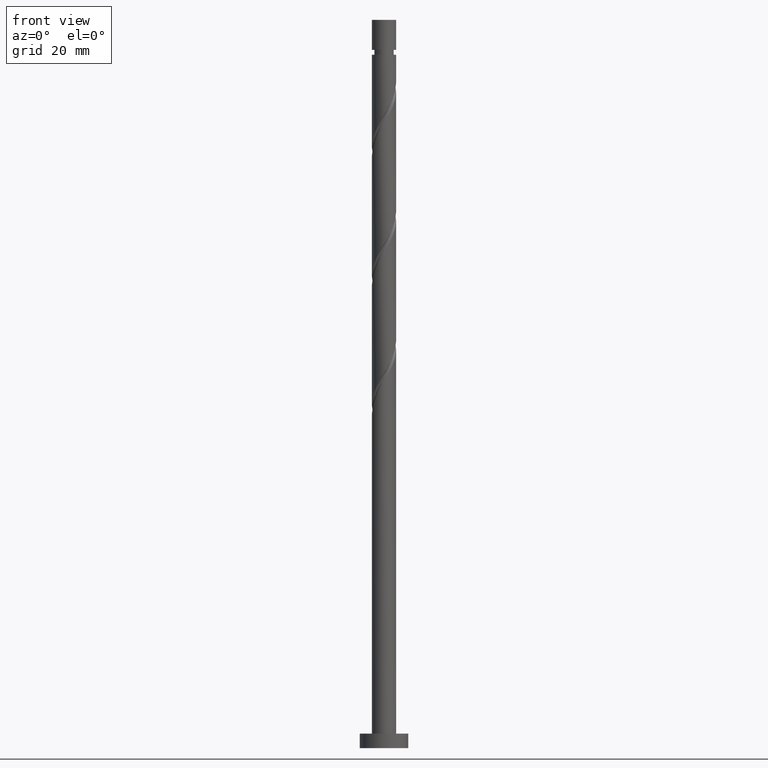
[diagram: clean part render]
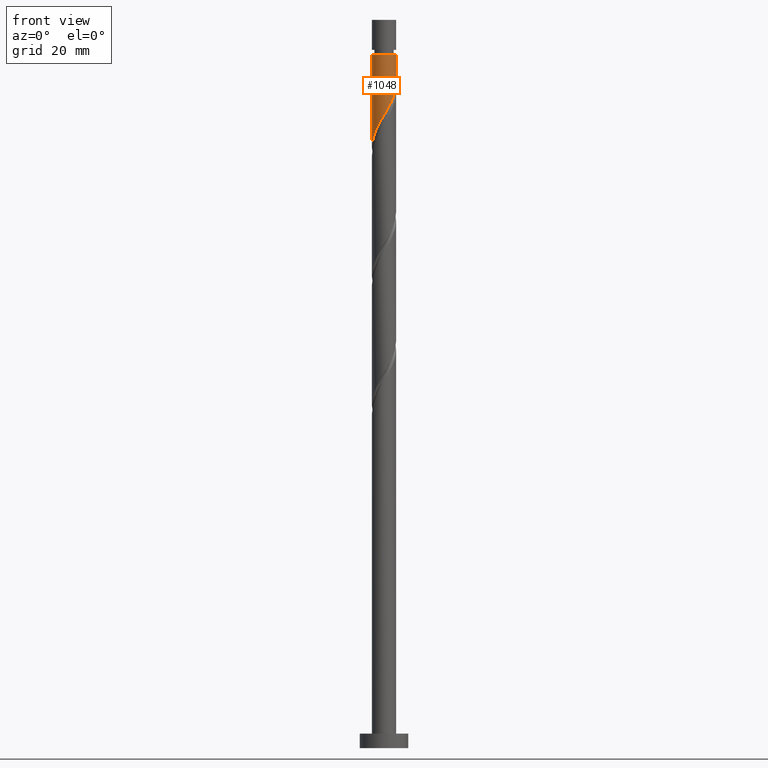
[diagram: same view with one face highlighted and labeled with its STEP entity id]
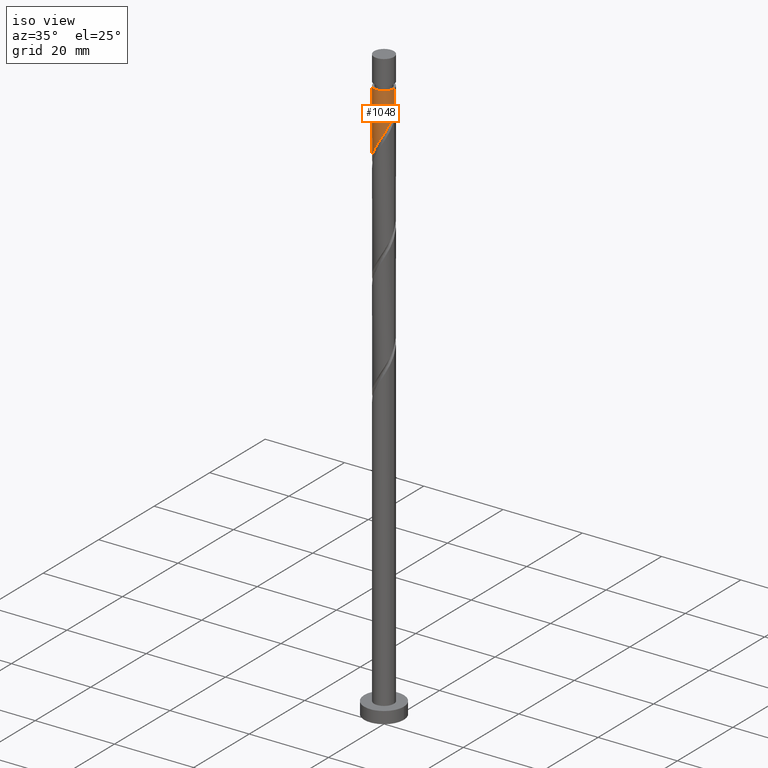
[diagram: same view with one face highlighted and labeled with its STEP entity id]
A machine part, front view. The second image highlights one B-rep face of the part: STEP entity #1048.
A second angle (iso view) of the same face is appended — the face is thin or edge-on in the first view.
In plain terms, the highlighted cylindrical surface (edge-blend (fillet) strip) has radius 2.5 mm, axis along (-0, -0, -1).
Its self-contained STEP definition (entity closure, byte-faithful):
#82 = CARTESIAN_POINT ( 'NONE',  ( 2.500000000000000444, -0.07193881630955681339, 137.3526907218116548 ) ) ;
#94 = DIRECTION ( 'NONE',  ( -0.000000000000000000, -0.000000000000000000, -1.000000000000000000 ) ) ;
#106 = CARTESIAN_POINT ( 'NONE',  ( -2.500000000000000444, -0.2863223184628033713, 124.6274153461678651 ) ) ;
#112 = VERTEX_POINT ( 'NONE', #677 ) ;
#157 = DIRECTION ( 'NONE',  ( -0.000000000000000000, -0.000000000000000000, -1.000000000000000000 ) ) ;
#270 = CARTESIAN_POINT ( 'NONE',  ( -0.8497505388409957172, -2.378471201873189500, 129.3526069745016684 ) ) ;
#279 = CARTESIAN_POINT ( 'NONE',  ( -2.000754257700505967, -1.541487475360714621, 126.9283645502592748 ) ) ;
#312 = DIRECTION ( 'NONE',  ( -1.000000000000000000, 0.000000000000000000, 0.000000000000000000 ) ) ;
#333 = CARTESIAN_POINT ( 'NONE',  ( 2.354261794510395411, -0.8411013035946941496, 136.0192736411683825 ) ) ;
#374 = CARTESIAN_POINT ( 'NONE',  ( 2.500000000000000000, 3.061616997868383141E-16, 150.5000000000000000 ) ) ;
#385 = EDGE_CURVE ( 'NONE', #622, #656, #1388, .T. ) ;
#395 = ORIENTED_EDGE ( 'NONE', *, *, #1060, .T. ) ;
#396 = CARTESIAN_POINT ( 'NONE',  ( -1.167586491630752565, -2.210597608014943649, 128.7465463684411020 ) ) ;
#457 = CARTESIAN_POINT ( 'NONE',  ( 0.000000000000000000, 0.000000000000000000, 150.5000000000000000 ) ) ;
#492 = DIRECTION ( 'NONE',  ( -0.000000000000000000, -0.000000000000000000, -1.000000000000000000 ) ) ;
#529 = EDGE_CURVE ( 'NONE', #1398, #112, #1548, .T. ) ;
#541 = CARTESIAN_POINT ( 'NONE',  ( -2.353996859965338917, -0.9153687888900168268, 125.7162433381380851 ) ) ;
#591 = CARTESIAN_POINT ( 'NONE',  ( 2.495863270706175197, -0.1437585960555973208, 137.2313948532895722 ) ) ;
#622 = VERTEX_POINT ( 'NONE', #1538 ) ;
#638 = ORIENTED_EDGE ( 'NONE', *, *, #529, .F. ) ;
#656 = VERTEX_POINT ( 'NONE', #789 ) ;
#667 = CARTESIAN_POINT ( 'NONE',  ( 2.233329684002602455, -1.179593048026942759, 135.4132130351077876 ) ) ;
#677 = CARTESIAN_POINT ( 'NONE',  ( 2.500000000000000000, -7.478410351748224240E-18, 137.4747887265298516 ) ) ;
#693 = AXIS2_PLACEMENT_3D ( 'NONE', #847, #697, #312 ) ;
#697 = DIRECTION ( 'NONE',  ( -0.000000000000000000, -0.000000000000000000, -1.000000000000000000 ) ) ;
#738 = CARTESIAN_POINT ( 'NONE',  ( 2.499999999999994227, 3.061616997868380183E-16, 143.2920009138956630 ) ) ;
#781 = ORIENTED_EDGE ( 'NONE', *, *, #910, .F. ) ;
#789 = CARTESIAN_POINT ( 'NONE',  ( -2.499999999999999556, 2.998842551051037612E-15, 124.1414553931965372 ) ) ;
#792 = CARTESIAN_POINT ( 'NONE',  ( -2.435264748179748917, -0.5652305779706338074, 125.1101827320774618 ) ) ;
#845 = EDGE_LOOP ( 'NONE', ( #638, #395, #899, #781 ) ) ;
#847 = CARTESIAN_POINT ( 'NONE',  ( 0.000000000000000000, 0.000000000000000000, 143.2920009138956630 ) ) ;
#867 = CARTESIAN_POINT ( 'NONE',  ( 1.241060336893708094, -2.199766004962785182, 132.9889706108653513 ) ) ;
#876 = CARTESIAN_POINT ( 'NONE',  ( 0.9060516544719195986, -2.330036566114080276, 132.3829100048047565 ) ) ;
#899 = ORIENTED_EDGE ( 'NONE', *, *, #385, .T. ) ;
#908 = CARTESIAN_POINT ( 'NONE',  ( 1.810534374112176215, -1.761012923450274714, 134.2010918229865410 ) ) ;
#910 = EDGE_CURVE ( 'NONE', #112, #656, #1234, .T. ) ;
#919 = CARTESIAN_POINT ( 'NONE',  ( -1.485422444420509969, -2.042724014156698242, 128.1404857623804787 ) ) ;
#972 = CARTESIAN_POINT ( 'NONE',  ( -2.500000000000000000, 0.000000000000000000, 150.5000000000000000 ) ) ;
#978 = DIRECTION ( 'NONE',  ( -1.000000000000000000, 0.000000000000000000, 0.000000000000000000 ) ) ;
#985 = CARTESIAN_POINT ( 'NONE',  ( 2.500000000000000000, -7.478410351748224240E-18, 137.4747887265298516 ) ) ;
#986 = FACE_OUTER_BOUND ( 'NONE', #845, .T. ) ;
#1020 = VECTOR ( 'NONE', #492, 1000.000000000000000 ) ;
#1041 = CARTESIAN_POINT ( 'NONE',  ( 2.021932029057389890, -1.470302985738608958, 134.8071524290471643 ) ) ;
#1048 = ADVANCED_FACE ( 'NONE', ( #986 ), #1095, .T. ) ;
#1060 = EDGE_CURVE ( 'NONE', #1398, #622, #1277, .T. ) ;
#1095 = CYLINDRICAL_SURFACE ( 'NONE', #1527, 2.500000000000000000 ) ;
#1105 = VECTOR ( 'NONE', #157, 1000.000000000000000 ) ;
#1170 = CARTESIAN_POINT ( 'NONE',  ( 1.525797355502941821, -1.980389464206530281, 133.5950312169259178 ) ) ;
#1180 = CARTESIAN_POINT ( 'NONE',  ( -2.177375558832922664, -1.228428132125366279, 126.3223039441986941 ) ) ;
#1234 =( BOUNDED_CURVE ( )  B_SPLINE_CURVE ( 2, ( #985, #82, #591, #1488, #333, #667, #1041, #908, #1170, #867, #876, #1383, #1561, #1642, #1420, #270, #396, #919, #1430, #279, #1180, #541, #792, #106, #1296 ),
 .UNSPECIFIED., .F., .T. ) 
 B_SPLINE_CURVE_WITH_KNOTS ( ( 3, 2, 2, 2, 2, 2, 2, 2, 2, 2, 2, 2, 3 ),
 ( 0.3045252162417513286, 0.3068181818181818232, 0.3181818181818181768, 0.3295454545454545303, 0.3409090909090908839, 0.3522727272727272929, 0.3636363636363636465, 0.3750000000000000000, 0.3863636363636363535, 0.3977272727272727071, 0.4090909090909091161, 0.4204545454545454697, 0.4295252162417514397 ),
 .UNSPECIFIED. ) 
 CURVE ( )  GEOMETRIC_REPRESENTATION_ITEM ( )  RATIONAL_B_SPLINE_CURVE ( ( 0.9061101570135582373, 0.9072237824201403456, 0.9090909090909178314, 0.8998376744372202918, 0.9090909090909178314, 0.8998376744372202918, 0.9090909090909178314, 0.8998376744372202918, 0.9090909090909178314, 0.8998376744372202918, 0.9090909090909178314, 0.8998376744372202918, 0.9090909090909178314, 0.8998376744372202918, 0.9090909090909178314, 0.8998376744372202918, 0.9090909090909178314, 0.8998376744372202918, 0.9090909090909178314, 0.8998376744372202918, 0.9090909090909178314, 0.8998376744372202918, 0.9090909090909178314, 0.9017048011079976666, 0.9061101570135581262 ) ) 
 REPRESENTATION_ITEM ( '' )  );
#1277 = CIRCLE ( 'NONE', #693, 2.499999999999994227 ) ;
#1296 = CARTESIAN_POINT ( 'NONE',  ( -2.499999999999999556, 2.998842551051037218E-15, 124.1414553931965372 ) ) ;
#1383 = CARTESIAN_POINT ( 'NONE',  ( 0.5710429720501314366, -2.460307127265375815, 131.7768493987441332 ) ) ;
#1388 = LINE ( 'NONE', #972, #1020 ) ;
#1398 = VERTEX_POINT ( 'NONE', #738 ) ;
#1420 = CARTESIAN_POINT ( 'NONE',  ( -0.4974937185533113704, -2.449999999999999734, 129.9586675805623202 ) ) ;
#1430 = CARTESIAN_POINT ( 'NONE',  ( -1.743088351060508412, -1.792105744758706098, 127.5344251563199123 ) ) ;
#1488 = CARTESIAN_POINT ( 'NONE',  ( 2.475193905018188367, -0.5026095591624450964, 136.6253342472289773 ) ) ;
#1527 = AXIS2_PLACEMENT_3D ( 'NONE', #457, #94, #978 ) ;
#1538 = CARTESIAN_POINT ( 'NONE',  ( -2.499999999999994227, 0.000000000000000000, 143.2920009138956630 ) ) ;
#1548 = LINE ( 'NONE', #374, #1105 ) ;
#1561 = CARTESIAN_POINT ( 'NONE',  ( 0.2129030368922517069, -2.490917962696093557, 131.1707887926835383 ) ) ;
#1642 = CARTESIAN_POINT ( 'NONE',  ( -0.1452368982656269403, -2.521528798126809967, 130.5647281866229150 ) ) ;